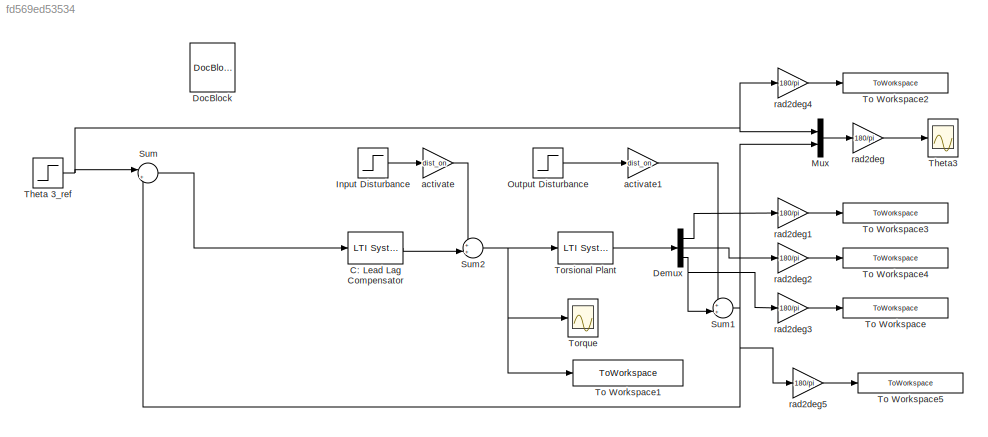
MODEL slx_fd569ed53534
KIND model
CONFIG AbsTol = auto
CONFIG EnableMultiTasking = on
CONFIG FixedStep = 1e-3
CONFIG MaxStep = 1e-2
CONFIG MinStep = 1e-8
CONFIG RelTol = 1e-3
CONFIG SampleTimeConstraint = Unconstrained
CONFIG Solver = ode3
CONFIG SolverName = ode3
CONFIG StartTime = 0.0
CONFIG StopTime = 10
BLOCK [Reference] C: Lead Lag Compensator  REF=cstblocks/LTI System
  Ports = [1, 1]
  SourceBlock = cstblocks/LTI System
  SourceProductBaseCode = CT
  SourceType = LTI Block
BLOCK [Demux] Demux
  Outputs = 3
  Ports = [1, 3]
BLOCK [Reference] DocBlock  REF=simulink/Model-Wide
Utilities/DocBlock
  Ports = []
  SourceBlock = simulink/Model-Wide\nUtilities/DocBlock
  SourceProductBaseCode = SL
  SourceType = DocBlock
  UserDataPersistent = on
BLOCK [Step] Input Disturbance
  After = 0.2
  SampleTime = 0
  Time = 7
BLOCK [Mux] Mux
  DisplayOption = bar
  Inputs = 2
  Ports = [2, 1]
BLOCK [Step] Output Disturbance
  After = 30*pi/180
  SampleTime = 0
  Time = 4
BLOCK [Sum] Sum
  Inputs = |+-
  Ports = [2, 1]
BLOCK [Sum] Sum1
  Inputs = ++|
  Ports = [2, 1]
BLOCK [Sum] Sum2
  Inputs = ++|
  Ports = [2, 1]
BLOCK [Step] Theta 3_ref
  After = 2*pi
  SampleTime = 0
  Time = 0
BLOCK [Scope] Theta3
  Floating = off
  NumInputPorts = 1
  Ports = [1]
  ScopeSpecificationString = C++SS(StrPVP('Location','[26, 60, 970, 1035]'),StrPVP('Open','off'),StrPVP('ZoomMode','yonly'),MxPVP('AxesTitles',54,'struct(''axes1'',''%<SignalLabel>'')'),MxPVP('ScopeGraphics',57,'struct(''FigureColor'',''[0.5 0.5 0.5]'',''AxesColor'',''[0 0 0]'',''AxesTickColor'',''[1 1 1]'',''LineColors'',''[1 1 0;1 0 1;0 1 1;1 0 0;0 1 0;0 0 1]'',''LineStyles'',''-|-|-|-|-|-'',''LineWidths'',''[0.5 0.5 0.5 0....<+325ch>
BLOCK [ToWorkspace] To Workspace
  FixptAsFi = on
  MaxDataPoints = inf
  Ports = [1]
  SampleTime = -1
  VariableName = sim_Theta3d
BLOCK [ToWorkspace] To Workspace1
  FixptAsFi = on
  MaxDataPoints = inf
  Ports = [1]
  SampleTime = -1
  VariableName = sim_Torque
BLOCK [ToWorkspace] To Workspace2
  FixptAsFi = on
  MaxDataPoints = inf
  Ports = [1]
  SampleTime = -1
  VariableName = sim_reft3
BLOCK [ToWorkspace] To Workspace3
  FixptAsFi = on
  MaxDataPoints = inf
  Ports = [1]
  SampleTime = -1
  VariableName = sim_Theta1
BLOCK [ToWorkspace] To Workspace4
  FixptAsFi = on
  MaxDataPoints = inf
  Ports = [1]
  SampleTime = -1
  VariableName = sim_Theta2
BLOCK [ToWorkspace] To Workspace5
  FixptAsFi = on
  MaxDataPoints = inf
  Ports = [1]
  SampleTime = -1
  VariableName = sim_Theta3
BLOCK [Scope] Torque
  Floating = off
  NumInputPorts = 1
  Ports = [1]
  ScopeSpecificationString = C++SS(StrPVP('Location','[26, 60, 970, 1035]'),StrPVP('Open','off'),StrPVP('ZoomMode','yonly'),MxPVP('AxesTitles',54,'struct(''axes1'',''%<SignalLabel>'')'),MxPVP('ScopeGraphics',57,'struct(''FigureColor'',''[0.5 0.5 0.5]'',''AxesColor'',''[0 0 0]'',''AxesTickColor'',''[1 1 1]'',''LineColors'',''[1 1 0;1 0 1;0 1 1;1 0 0;0 1 0;0 0 1]'',''LineStyles'',''-|-|-|-|-|-'',''LineWidths'',''[0.5 0.5 0.5 0....<+293ch>
BLOCK [Reference] Torsional Plant  REF=cstblocks/LTI System
  Ports = [1, 1]
  SourceBlock = cstblocks/LTI System
  SourceProductBaseCode = CT
  SourceType = LTI Block
BLOCK [Gain] activate
  Gain = dist_on
BLOCK [Gain] activate1
  Gain = dist_on
BLOCK [Gain] rad2deg
  Gain = 180/pi
BLOCK [Gain] rad2deg1
  Gain = 180/pi
BLOCK [Gain] rad2deg2
  Gain = 180/pi
BLOCK [Gain] rad2deg3
  Gain = 180/pi
BLOCK [Gain] rad2deg4
  Gain = 180/pi
BLOCK [Gain] rad2deg5
  Gain = 180/pi
LINE C: Lead Lag Compensator:1 -> Sum2:2
LINE Demux:1 -> rad2deg1:1
LINE Demux:2 -> rad2deg2:1
NET Demux:3 -> Sum1:2, rad2deg3:1
LINE Input Disturbance:1 -> activate:1
LINE Mux:1 -> rad2deg:1
LINE Output Disturbance:1 -> activate1:1
NET Sum1:1 -> Mux:2, Sum:2, rad2deg5:1
NET Sum2:1 -> To Workspace1:1, Torque:1, Torsional Plant:1
LINE Sum:1 -> C: Lead Lag Compensator:1
NET Theta 3_ref:1 -> Mux:1, Sum:1, rad2deg4:1
LINE Torsional Plant:1 -> Demux:1
LINE activate1:1 -> Sum1:1
LINE activate:1 -> Sum2:1
LINE rad2deg1:1 -> To Workspace3:1
LINE rad2deg2:1 -> To Workspace4:1
LINE rad2deg3:1 -> To Workspace:1
LINE rad2deg4:1 -> To Workspace2:1
LINE rad2deg5:1 -> To Workspace5:1
LINE rad2deg:1 -> Theta3:1
note: NET lines group one-source signal fan-out (src -> all destinations, sorted); 1:1 wires keep LINE
